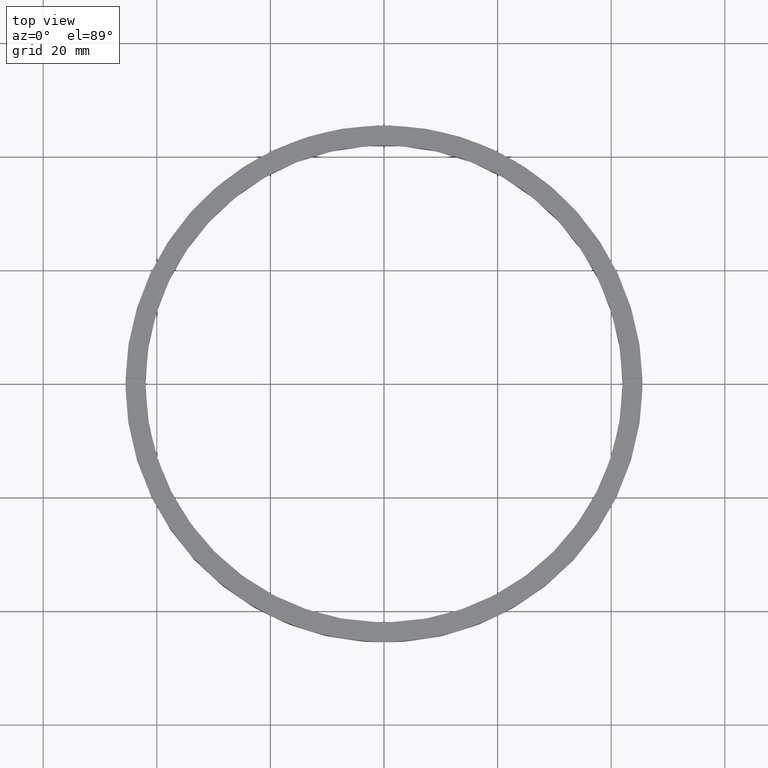
[diagram: clean part render]
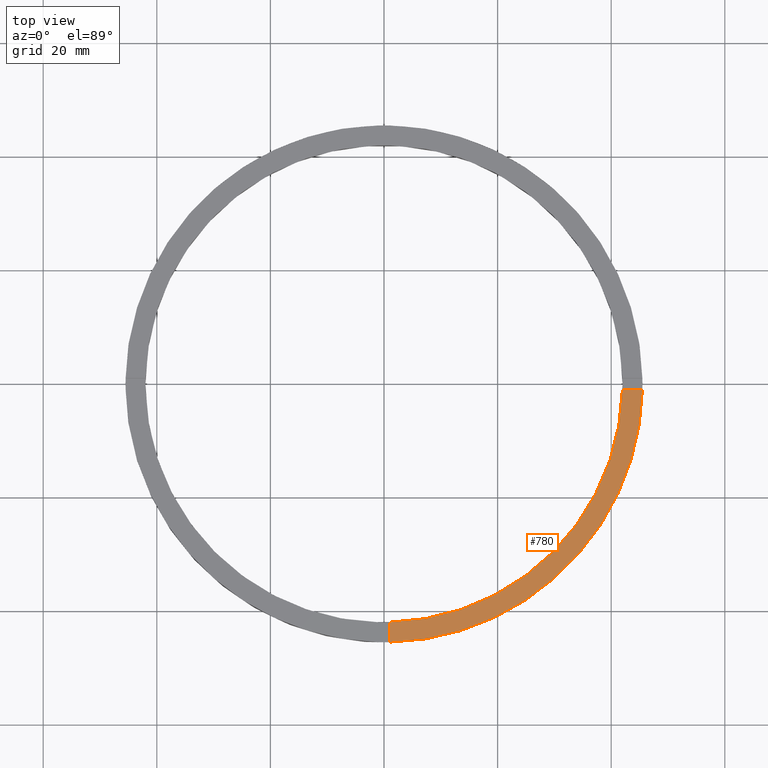
[diagram: same view with one face highlighted and labeled with its STEP entity id]
A machine part, top view. The second image highlights one B-rep face of the part: STEP entity #780.
In plain terms, the highlighted planar face has unit normal (0, 0, 1).
Its self-contained STEP definition (entity closure, byte-faithful):
#2 = VERTEX_POINT ( 'NONE', #559 ) ;
#40 = AXIS2_PLACEMENT_3D ( 'NONE', #247, #303, #606 ) ;
#59 = CIRCLE ( 'NONE', #647, 42.00000000000000000 ) ;
#92 = LINE ( 'NONE', #237, #95 ) ;
#95 = VECTOR ( 'NONE', #159, 1000.000000000000000 ) ;
#110 = CIRCLE ( 'NONE', #40, 45.50000000000000000 ) ;
#159 = DIRECTION ( 'NONE',  ( -1.301042606982605074E-16, 1.000000000000000000, -0.000000000000000000 ) ) ;
#162 = VERTEX_POINT ( 'NONE', #620 ) ;
#178 = ORIENTED_EDGE ( 'NONE', *, *, #270, .F. ) ;
#187 = AXIS2_PLACEMENT_3D ( 'NONE', #527, #582, #196 ) ;
#196 = DIRECTION ( 'NONE',  ( 1.000000000000000000, 0.000000000000000000, -0.000000000000000000 ) ) ;
#237 = CARTESIAN_POINT ( 'NONE',  ( 0.9999999999998409050, -35.50000000000017764, 4.500000000000000000 ) ) ;
#247 = CARTESIAN_POINT ( 'NONE',  ( 0.000000000000000000, 0.000000000000000000, 4.500000000000000000 ) ) ;
#255 = VERTEX_POINT ( 'NONE', #667 ) ;
#258 = EDGE_CURVE ( 'NONE', #778, #162, #92, .T. ) ;
#268 = DIRECTION ( 'NONE',  ( 0.000000000000000000, 0.000000000000000000, 1.000000000000000000 ) ) ;
#270 = EDGE_CURVE ( 'NONE', #255, #2, #603, .T. ) ;
#303 = DIRECTION ( 'NONE',  ( 0.000000000000000000, 0.000000000000000000, 1.000000000000000000 ) ) ;
#315 = DIRECTION ( 'NONE',  ( 1.000000000000000000, 0.000000000000000000, 0.000000000000000000 ) ) ;
#327 = PLANE ( 'NONE',  #187 ) ;
#411 = FACE_OUTER_BOUND ( 'NONE', #756, .T. ) ;
#437 = ORIENTED_EDGE ( 'NONE', *, *, #492, .F. ) ;
#476 = CARTESIAN_POINT ( 'NONE',  ( 35.49999999999999289, -1.000000000000156763, 4.500000000000000000 ) ) ;
#492 = EDGE_CURVE ( 'NONE', #162, #255, #59, .T. ) ;
#527 = CARTESIAN_POINT ( 'NONE',  ( 0.000000000000000000, 0.000000000000000000, 4.500000000000000000 ) ) ;
#534 = EDGE_CURVE ( 'NONE', #778, #2, #110, .T. ) ;
#559 = CARTESIAN_POINT ( 'NONE',  ( 45.48900966167541782, -1.000000000000156097, 4.500000000000000000 ) ) ;
#579 = CARTESIAN_POINT ( 'NONE',  ( 0.9999999999998421263, -45.48900966167542492, 4.500000000000000000 ) ) ;
#582 = DIRECTION ( 'NONE',  ( 0.000000000000000000, 0.000000000000000000, 1.000000000000000000 ) ) ;
#603 = LINE ( 'NONE', #476, #611 ) ;
#606 = DIRECTION ( 'NONE',  ( 1.000000000000000000, 0.000000000000000000, 0.000000000000000000 ) ) ;
#611 = VECTOR ( 'NONE', #705, 1000.000000000000000 ) ;
#620 = CARTESIAN_POINT ( 'NONE',  ( 0.9999999999998416822, -41.98809355043403713, 4.500000000000000000 ) ) ;
#647 = AXIS2_PLACEMENT_3D ( 'NONE', #665, #268, #315 ) ;
#665 = CARTESIAN_POINT ( 'NONE',  ( 0.000000000000000000, 0.000000000000000000, 4.500000000000000000 ) ) ;
#667 = CARTESIAN_POINT ( 'NONE',  ( 41.98809355043403002, -1.000000000000156319, 4.500000000000000000 ) ) ;
#705 = DIRECTION ( 'NONE',  ( 1.000000000000000000, 6.505213034913025371E-17, 0.000000000000000000 ) ) ;
#725 = ORIENTED_EDGE ( 'NONE', *, *, #534, .T. ) ;
#756 = EDGE_LOOP ( 'NONE', ( #178, #437, #765, #725 ) ) ;
#765 = ORIENTED_EDGE ( 'NONE', *, *, #258, .F. ) ;
#778 = VERTEX_POINT ( 'NONE', #579 ) ;
#780 = ADVANCED_FACE ( 'NONE', ( #411 ), #327, .T. ) ;